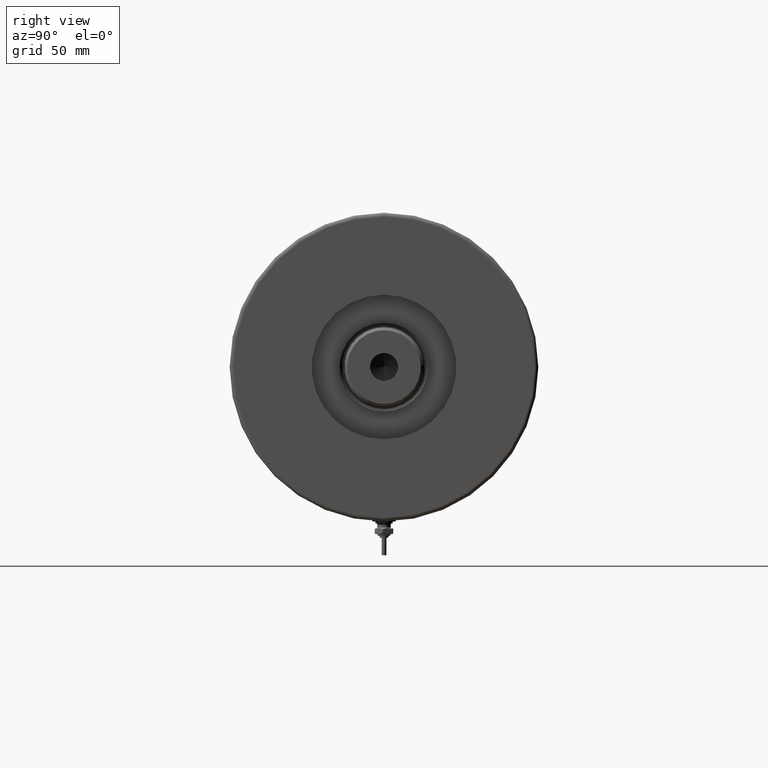
[diagram: clean part render]
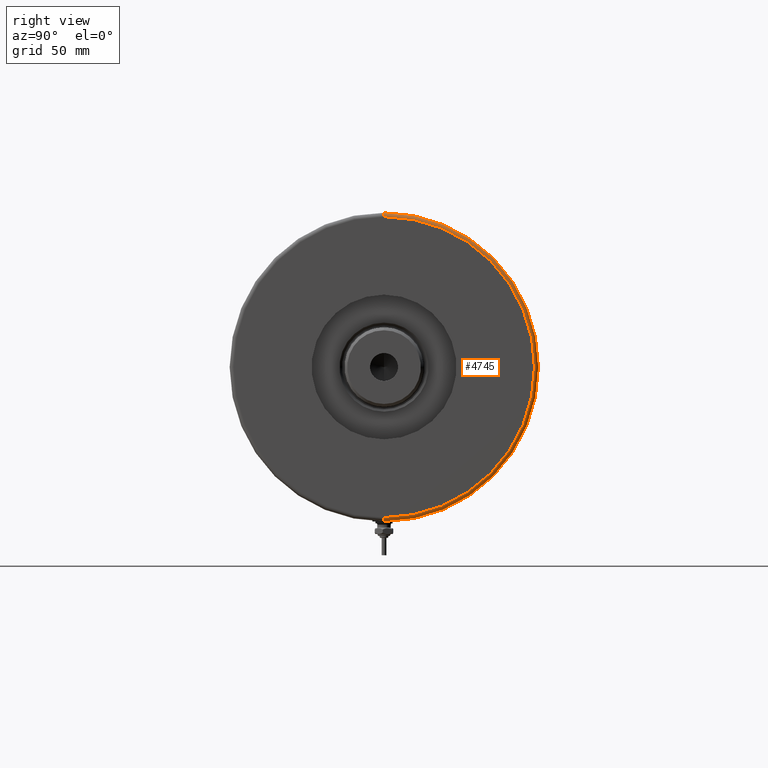
[diagram: same view with one face highlighted and labeled with its STEP entity id]
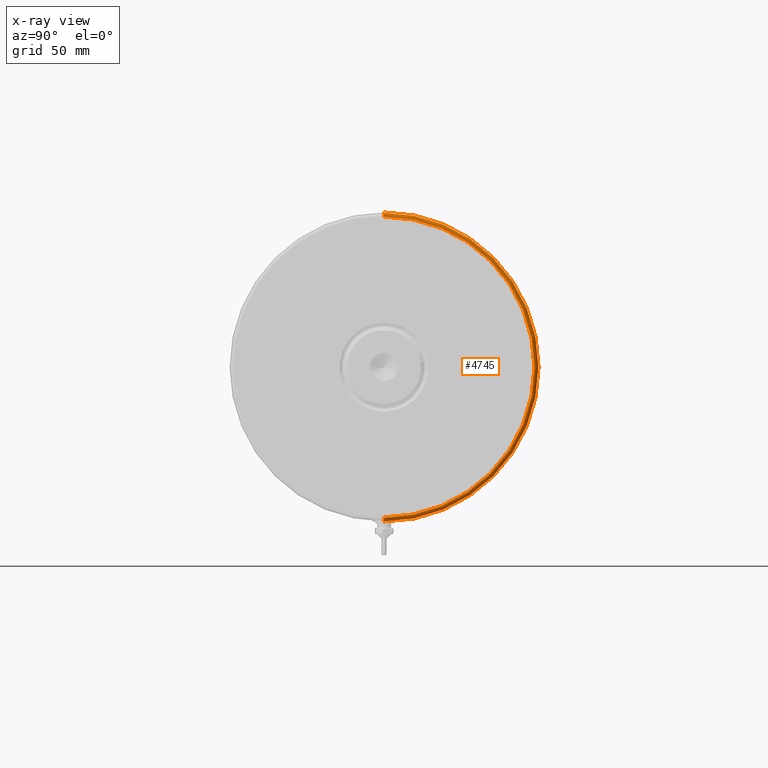
[diagram: x-ray of the same camera — body ghosted, the highlighted face saturated]
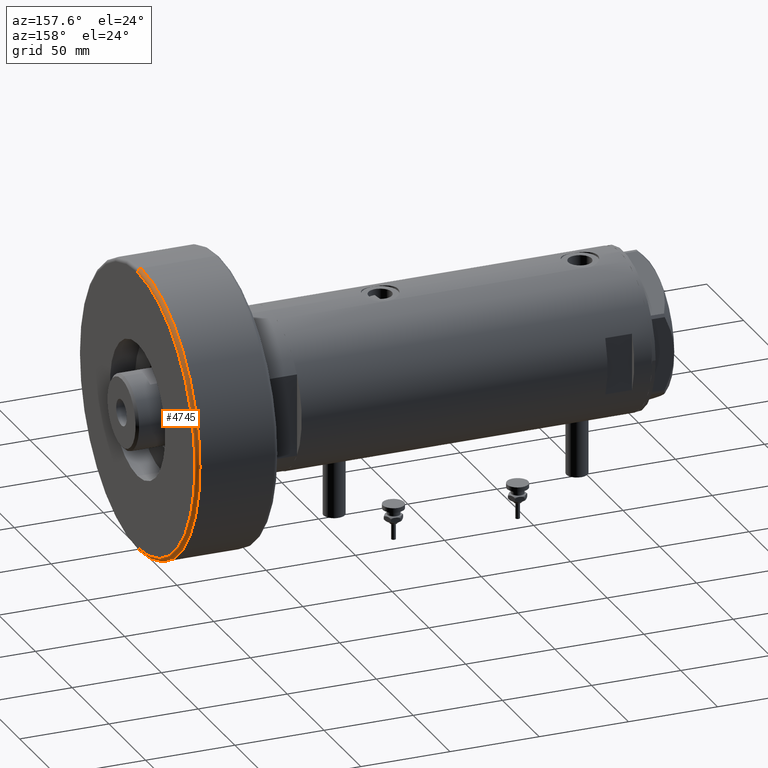
[diagram: same view with one face highlighted and labeled with its STEP entity id]
A machine part, right view. The second image highlights one B-rep face of the part: STEP entity #4745.
The next image is the same camera in x-ray: the body ghosted, the highlighted face saturated — about 0% of this face is hidden behind the body in this view.
A second angle (auxiliary view) of the same face is appended — the face is thin or edge-on in the first view.
In plain terms, the highlighted toroidal blend (fillet) surface has major radius 78 mm and minor (blend) radius 2 mm.
Its self-contained STEP definition (entity closure, byte-faithful):
#60 = DIRECTION ( 'NONE',  ( 0.000000000000000000, -1.000000000000000000, 0.000000000000000000 ) ) ;
#118 = DIRECTION ( 'NONE',  ( 0.000000000000000000, 0.000000000000000000, 1.000000000000000000 ) ) ;
#580 = CIRCLE ( 'NONE', #2113, 78.00000000000000000 ) ;
#699 = EDGE_LOOP ( 'NONE', ( #5297, #1677, #1460, #5279 ) ) ;
#982 = CIRCLE ( 'NONE', #5939, 2.000000000000001776 ) ;
#1071 = VERTEX_POINT ( 'NONE', #3947 ) ;
#1172 = AXIS2_PLACEMENT_3D ( 'NONE', #5799, #2881, #4360 ) ;
#1390 = AXIS2_PLACEMENT_3D ( 'NONE', #1501, #4963, #6071 ) ;
#1460 = ORIENTED_EDGE ( 'NONE', *, *, #5334, .F. ) ;
#1501 = CARTESIAN_POINT ( 'NONE',  ( 0.000000000000000000, 0.000000000000000000, 44.00000000000000000 ) ) ;
#1677 = ORIENTED_EDGE ( 'NONE', *, *, #4339, .T. ) ;
#1994 = DIRECTION ( 'NONE',  ( 1.224646799147353207E-16, 1.000000000000000000, -0.000000000000000000 ) ) ;
#2047 = VERTEX_POINT ( 'NONE', #4197 ) ;
#2095 = CIRCLE ( 'NONE', #1172, 80.00000000000000000 ) ;
#2113 = AXIS2_PLACEMENT_3D ( 'NONE', #4531, #118, #5476 ) ;
#2615 = CARTESIAN_POINT ( 'NONE',  ( 78.00000000000000000, 0.000000000000000000, 44.00000000000000000 ) ) ;
#2738 = TOROIDAL_SURFACE ( 'NONE', #1390, 78.00000000000000000, 2.000000000000000000 ) ;
#2881 = DIRECTION ( 'NONE',  ( -0.000000000000000000, -0.000000000000000000, -1.000000000000000000 ) ) ;
#2941 = DIRECTION ( 'NONE',  ( -1.000000000000000000, 1.224646799147349509E-16, 0.000000000000000000 ) ) ;
#3148 = AXIS2_PLACEMENT_3D ( 'NONE', #5367, #1994, #2941 ) ;
#3338 = VERTEX_POINT ( 'NONE', #3554 ) ;
#3437 = EDGE_CURVE ( 'NONE', #1071, #3338, #982, .T. ) ;
#3554 = CARTESIAN_POINT ( 'NONE',  ( 78.00000000000000000, 0.000000000000000000, 46.00000000000000000 ) ) ;
#3613 = EDGE_CURVE ( 'NONE', #2047, #1071, #2095, .T. ) ;
#3654 = CIRCLE ( 'NONE', #3148, 2.000000000000001776 ) ;
#3947 = CARTESIAN_POINT ( 'NONE',  ( 80.00000000000000000, 9.797174393178826052E-15, 44.00000000000000000 ) ) ;
#4197 = CARTESIAN_POINT ( 'NONE',  ( -80.00000000000000000, 0.000000000000000000, 44.00000000000000000 ) ) ;
#4339 = EDGE_CURVE ( 'NONE', #2047, #6181, #3654, .T. ) ;
#4360 = DIRECTION ( 'NONE',  ( 1.000000000000000000, 0.000000000000000000, 0.000000000000000000 ) ) ;
#4531 = CARTESIAN_POINT ( 'NONE',  ( 0.000000000000000000, 0.000000000000000000, 46.00000000000000000 ) ) ;
#4745 = ADVANCED_FACE ( 'NONE', ( #5360 ), #2738, .T. ) ;
#4963 = DIRECTION ( 'NONE',  ( 0.000000000000000000, 0.000000000000000000, 1.000000000000000000 ) ) ;
#5033 = CARTESIAN_POINT ( 'NONE',  ( -78.00000000000000000, 9.674709713264090904E-15, 46.00000000000000000 ) ) ;
#5279 = ORIENTED_EDGE ( 'NONE', *, *, #3437, .F. ) ;
#5297 = ORIENTED_EDGE ( 'NONE', *, *, #3613, .F. ) ;
#5334 = EDGE_CURVE ( 'NONE', #3338, #6181, #580, .T. ) ;
#5360 = FACE_OUTER_BOUND ( 'NONE', #699, .T. ) ;
#5367 = CARTESIAN_POINT ( 'NONE',  ( -78.00000000000000000, 9.552245033349355756E-15, 44.00000000000000000 ) ) ;
#5476 = DIRECTION ( 'NONE',  ( 1.000000000000000000, 0.000000000000000000, 0.000000000000000000 ) ) ;
#5799 = CARTESIAN_POINT ( 'NONE',  ( 0.000000000000000000, 0.000000000000000000, 44.00000000000000000 ) ) ;
#5939 = AXIS2_PLACEMENT_3D ( 'NONE', #2615, #60, #5997 ) ;
#5997 = DIRECTION ( 'NONE',  ( 0.000000000000000000, 0.000000000000000000, -1.000000000000000000 ) ) ;
#6071 = DIRECTION ( 'NONE',  ( 1.000000000000000000, 0.000000000000000000, 0.000000000000000000 ) ) ;
#6181 = VERTEX_POINT ( 'NONE', #5033 ) ;